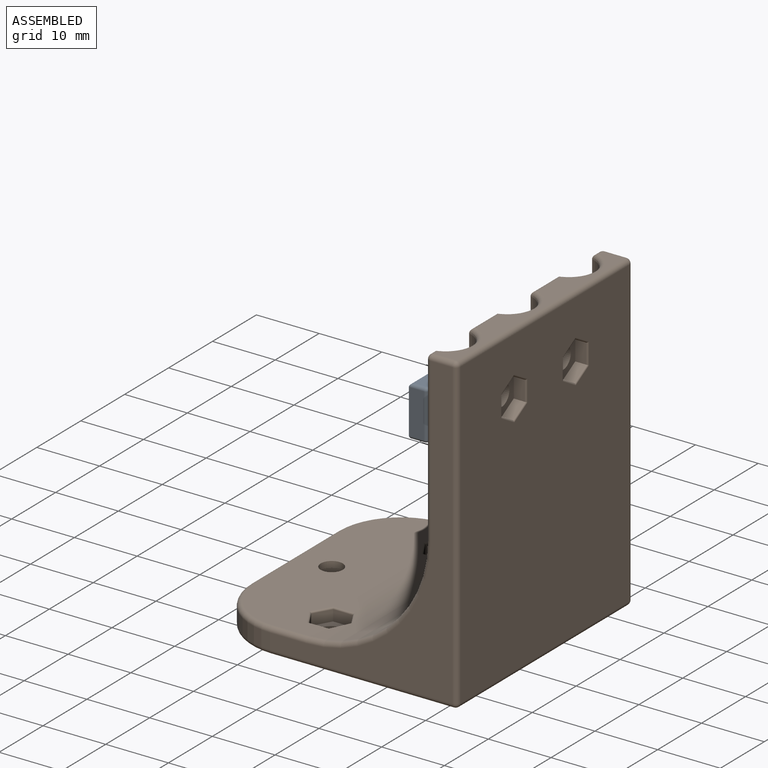
[diagram: assembled view]
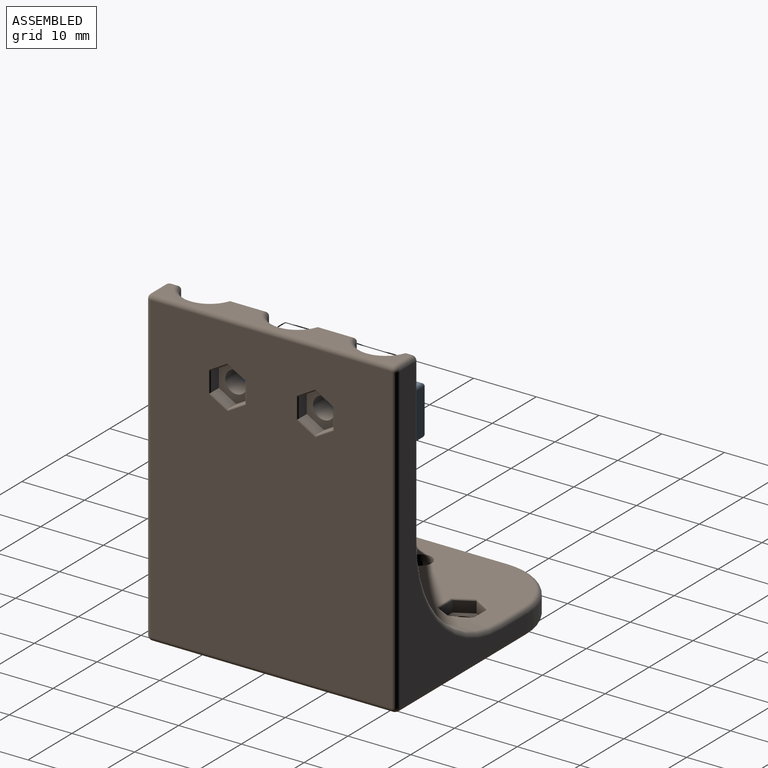
[diagram: assembled view, second angle]
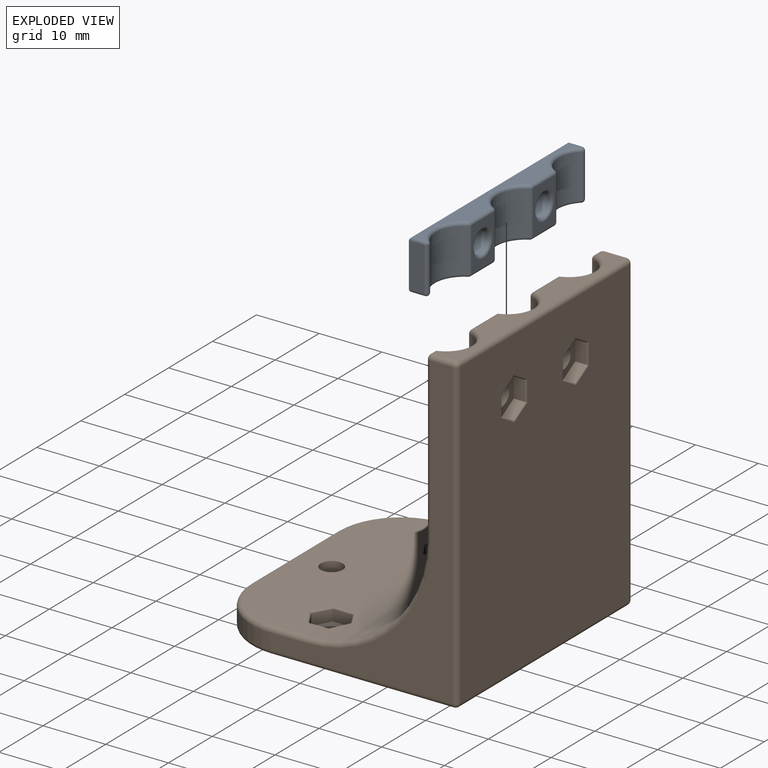
[diagram: exploded view]
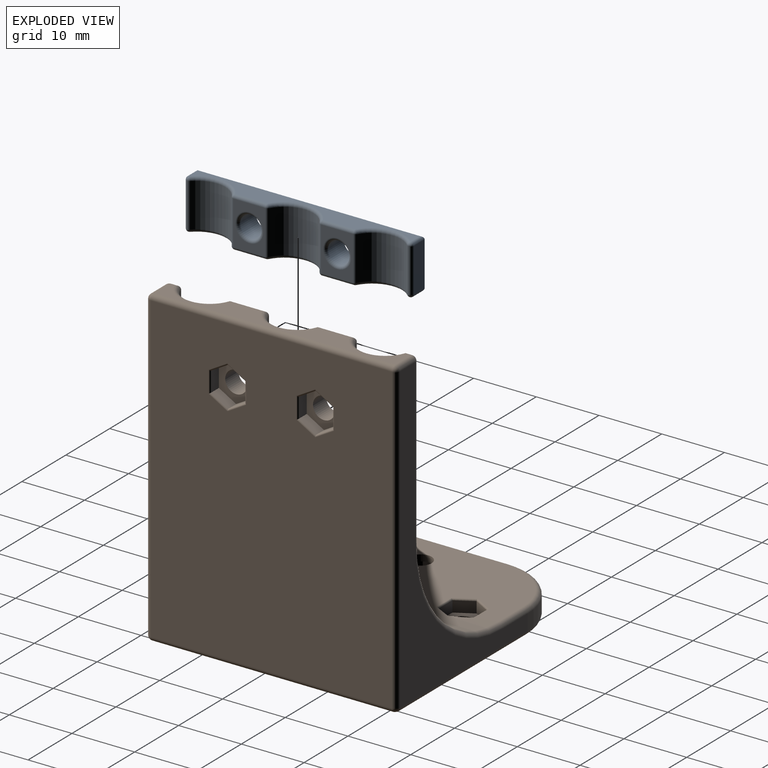
[diagram: exploded view, second angle]
ASSEMBLY  parts=2 mates=2
PART A: 48 faces, bbox 36.4x8x4 mm
  f0: cylinder r=4.6mm len=7.28mm, axis (0,1,0), area 59.4mm2, adj f36,f41,f44,f47
  f1: plane 6.98x5.1mm, normal (0,0,-1), area 19.6mm2, adj f12,f33,f42,f43,f47
  f2: cylinder r=4.6mm len=8.01mm, axis (0,1,0), area 68mm2, adj f24,f32,f33,f34
  f3: plane 6.98x5.1mm, normal (0,0,-1), area 19.6mm2, adj f13,f15,f23,f24,f25
  f4: cylinder r=4.6mm len=7.28mm, axis (0,1,0), area 59.4mm2, adj f14,f15,f16,f17
  f5: plane 6.98x2.41mm, normal (1,0,0), area 16.8mm2, adj f6,f17,f22,f26
  f6: plane 36.29x6.98mm, normal (0,0,1), area 234.2mm2, adj f5,f7,f10,f11,f27,f30
  f7: plane 6.98x2.41mm, normal (-1,0,0), area 16.8mm2, adj f6,f31,f35,f36
  f8: plane 35.27x2.98mm, normal (0,-1,0), area 56.9mm2, adj f14,f22,f23,f27,f31,f32,f41,f42
  f9: plane 35.27x2.98mm, normal (0,1,0), area 56.9mm2, adj f16,f25,f26,f30,f34,f35,f43,f44
  f10: cylinder r=1.75mm len=3.5mm, axis (0,0,1), area 38.4mm2, adj f6,f13
  f11: cylinder r=1.75mm len=3.5mm, axis (0,0,1), area 38.4mm2, adj f6,f12
  f12: torus R=2.26mm, axis (0,0,1), area 9.7mm2, adj f1,f11
  f13: torus R=2.26mm, axis (0,0,1), area 9.7mm2, adj f3,f10
  f14: torus R=5.11mm, axis (0,-1,0), area 7.1mm2, adj f4,f8,f18,f19
  f15: cylinder r=0.51mm len=6.98mm, axis (0,1,0), area 3.8mm2, adj f3,f4,f19,f20
  f16: torus R=5.11mm, axis (0,-1,0), area 7.1mm2, adj f4,f9,f20,f21
  f17: cylinder r=0.51mm len=6.98mm, axis (0,1,0), area 8.4mm2, adj f4,f5,f18,f21
  f18: sphere r=0.51mm, area 0.6mm2, adj f14,f17,f22
  f19: sphere r=0.51mm, area 0.3mm2, adj f14,f15,f23
  f20: sphere r=0.51mm, area 0.3mm2, adj f15,f16,f25
  f21: sphere r=0.51mm, area 0.6mm2, adj f16,f17,f26
  f22: cylinder r=0.51mm len=2.41mm, axis (0,0,-1), area 1.8mm2, adj f5,f8,f18,f27
  f23: cylinder r=0.51mm len=5.1mm, axis (-1,0,0), area 4.1mm2, adj f3,f8,f19,f28
  f24: cylinder r=0.51mm len=6.98mm, axis (0,1,0), area 3.8mm2, adj f2,f3,f28,f29
  f25: cylinder r=0.51mm len=5.1mm, axis (1,0,0), area 4.1mm2, adj f3,f9,f20,f29
  f26: cylinder r=0.51mm len=2.41mm, axis (0,0,1), area 1.8mm2, adj f5,f9,f21,f30
  f27: cylinder r=0.51mm len=36.29mm, axis (1,0,0), area 28.7mm2, adj f6,f8,f22,f31
  f28: sphere r=0.51mm, area 0.3mm2, adj f23,f24,f32
  f29: sphere r=0.51mm, area 0.3mm2, adj f24,f25,f34
  f30: cylinder r=0.51mm len=36.29mm, axis (-1,0,0), area 28.7mm2, adj f6,f9,f26,f35
  f31: cylinder r=0.51mm len=2.41mm, axis (0,0,1), area 1.8mm2, adj f7,f8,f27,f37
  f32: torus R=5.11mm, axis (0,-1,0), area 8.1mm2, adj f2,f8,f28,f38
  f33: cylinder r=0.51mm len=6.98mm, axis (0,1,0), area 3.8mm2, adj f1,f2,f38,f39
  f34: torus R=5.11mm, axis (0,-1,0), area 8.1mm2, adj f2,f9,f29,f39
  f35: cylinder r=0.51mm len=2.41mm, axis (0,0,-1), area 1.8mm2, adj f7,f9,f30,f40
  f36: cylinder r=0.51mm len=6.98mm, axis (0,1,0), area 8.4mm2, adj f0,f7,f37,f40
  f37: sphere r=0.51mm, area 0.6mm2, adj f31,f36,f41
  f38: sphere r=0.51mm, area 0.3mm2, adj f32,f33,f42
  f39: sphere r=0.51mm, area 0.3mm2, adj f33,f34,f43
  f40: sphere r=0.51mm, area 0.6mm2, adj f35,f36,f44
  f41: torus R=5.11mm, axis (0,-1,0), area 7.1mm2, adj f0,f8,f37,f45
  f42: cylinder r=0.51mm len=5.1mm, axis (-1,0,0), area 4.1mm2, adj f1,f8,f38,f45
  f43: cylinder r=0.51mm len=5.1mm, axis (1,0,0), area 4.1mm2, adj f1,f9,f39,f46
  f44: torus R=5.11mm, axis (0,-1,0), area 7.1mm2, adj f0,f9,f40,f46
  f45: sphere r=0.51mm, area 0.3mm2, adj f41,f42,f47
  f46: sphere r=0.51mm, area 0.3mm2, adj f43,f44,f47
  f47: cylinder r=0.51mm len=6.98mm, axis (0,1,0), area 3.8mm2, adj f0,f1,f45,f46
PART B: 130 faces, bbox 40.8x41.7x50 mm
  f0: cylinder r=1.75mm len=3.5mm, axis (0,0,1), area 11mm2, adj f11,f43
  f1: cylinder r=1.75mm len=3.5mm, axis (-1,0,0), area 33mm2, adj f3,f34
  f2: cylinder r=1.75mm len=3.5mm, axis (-1,0,0), area 33mm2, adj f4,f27
  f3: plane 26.19x6.25mm, normal (-1,0,0), area 154.2mm2, adj f1,f10,f15,f16,f80
  f4: plane 26.19x6.25mm, normal (-1,0,0), area 154.2mm2, adj f2,f10,f16,f17,f70
  f5: plane 26.19x1.37mm, normal (-1,0,0), area 35.7mm2, adj f10,f17,f63,f64
  f6: plane 38.48x3.48mm, normal (0,0,1), area 76.1mm2, adj f63,f65,f70,f71,f76,f80,f81,f84
  f7: plane 38.48x38.48mm, normal (0,0,-1), area 1392mm2, adj f35,f36,f60,f61,f62,f68,f73,f74
  f8: plane 48.48x38.48mm, normal (1,0,0), area 1802.6mm2, adj f72,f73,f81,f82,f118,f119,f120,f121
  f9: plane 26.19x1.37mm, normal (-1,0,0), area 35.7mm2, adj f10,f15,f87,f92
  f10: cylinder r=19.05mm len=38.48mm, axis (0,1,0), area 1087.7mm2, adj f3,f4,f5,f9,f11,f15,f16,f17
  f11: plane 38.48x15.19mm, normal (0,0,1), area 494.2mm2, adj f0,f10,f75,f79,f83,f86,f89,f96
  f12: plane 19.68x2.48mm, normal (-1,0,0), area 48.7mm2, adj f58,f59,f62,f83
  f13: plane 48.48x29.08mm, normal (0,-1,0), area 316.1mm2, adj f59,f74,f82,f88,f89,f91,f92
  f14: plane 48.48x29.08mm, normal (0,1,0), area 316.1mm2, adj f58,f61,f64,f69,f71,f72,f75
  f15: cylinder r=4mm len=26.43mm, axis (0,0,1), area 268.3mm2, adj f3,f9,f10,f84,f95
  f16: cylinder r=4mm len=26.43mm, axis (0,0,1), area 268.3mm2, adj f3,f4,f10,f76,f94
  f17: cylinder r=4mm len=26.43mm, axis (0,0,1), area 268.3mm2, adj f4,f5,f10,f65,f93
  f18: cylinder r=2.54mm len=6.47mm, axis (0,1,0), area 16.7mm2, adj f10,f95
  f19: cylinder r=2.54mm len=6.47mm, axis (0,1,0), area 16.7mm2, adj f10,f94
  f20: cylinder r=2.54mm len=6.47mm, axis (0,1,0), area 16.7mm2, adj f10,f93
  f21: plane 3.18x1.75mm, normal (0,-1,0), area 5.5mm2, adj f22,f26,f27,f120
  f22: plane 2.75x1.75mm, normal (0,-0.5,-0.87), area 5.5mm2, adj f21,f23,f27,f118
  f23: plane 2.75x1.75mm, normal (0,0.5,-0.87), area 5.5mm2, adj f22,f24,f27,f119
  f24: plane 3.18x1.75mm, normal (0,1,0), area 5.5mm2, adj f23,f25,f27,f121
  f25: plane 2.75x1.75mm, normal (0,0.5,0.87), area 5.5mm2, adj f24,f26,f27,f123
  f26: plane 2.75x1.75mm, normal (0,-0.5,0.87), area 5.5mm2, adj f21,f25,f27,f122
  f27: plane 6.35x5.5mm, normal (1,0,0), area 16.6mm2, adj f2,f21,f22,f23,f24,f25,f26
  f28: plane 3.18x1.75mm, normal (0,-1,0), area 5.5mm2, adj f29,f33,f34,f126
  f29: plane 2.75x1.75mm, normal (0,-0.5,-0.87), area 5.5mm2, adj f28,f30,f34,f124
  f30: plane 2.75x1.75mm, normal (0,0.5,-0.87), area 5.5mm2, adj f29,f31,f34,f125
  f31: plane 3.18x1.75mm, normal (0,1,0), area 5.5mm2, adj f30,f32,f34,f127
  f32: plane 2.75x1.75mm, normal (0,0.5,0.87), area 5.5mm2, adj f31,f33,f34,f129
  f33: plane 2.75x1.75mm, normal (0,-0.5,0.87), area 5.5mm2, adj f28,f32,f34,f128
  f34: plane 6.35x5.5mm, normal (1,0,0), area 16.6mm2, adj f1,f28,f29,f30,f31,f32,f33
  f35: cylinder r=1.75mm len=3.5mm, axis (0,0,1), area 22mm2, adj f7,f57
  f36: cylinder r=1.75mm len=3.5mm, axis (0,0,1), area 22mm2, adj f7,f50
  f37: plane 3.18x2.75mm, normal (-1,0,0), area 8.7mm2, adj f38,f42,f43,f114
  f38: plane 2.75x2.75mm, normal (-0.5,0.87,0), area 8.7mm2, adj f37,f39,f43,f112
  f39: plane 2.75x2.75mm, normal (0.5,0.87,0), area 8.7mm2, adj f38,f40,f43,f113
  f40: plane 3.18x2.75mm, normal (1,0,0), area 8.7mm2, adj f39,f41,f43,f115
  f41: plane 2.75x2.75mm, normal (0.5,-0.87,0), area 8.7mm2, adj f40,f42,f43,f117
  f42: plane 2.75x2.75mm, normal (-0.5,-0.87,0), area 8.7mm2, adj f37,f41,f43,f116
  f43: plane 6.35x5.5mm, normal (0,0,-1), area 16.6mm2, adj f0,f37,f38,f39,f40,f41,f42
  f44: plane 3.18x1.76mm, normal (0,-1,0), area 5.5mm2, adj f45,f49,f50,f102,f103
  f45: plane 2.75x1.75mm, normal (0.87,-0.5,0), area 5.5mm2, adj f44,f46,f50,f100
  f46: plane 2.75x1.75mm, normal (0.87,0.5,0), area 5.5mm2, adj f45,f47,f50,f98
  f47: plane 3.18x1.76mm, normal (0,1,0), area 5.5mm2, adj f46,f48,f50,f96,f97
  f48: plane 2.75x1.9mm, normal (-0.87,0.5,0), area 5.8mm2, adj f47,f49,f50,f97,f99
  f49: plane 2.75x1.9mm, normal (-0.87,-0.5,0), area 5.8mm2, adj f44,f48,f50,f101,f103
  f50: plane 6.35x5.5mm, normal (0,0,1), area 16.6mm2, adj f36,f44,f45,f46,f47,f48,f49
  f51: plane 2.75x1.75mm, normal (0.87,0.5,0), area 5.5mm2, adj f52,f56,f57,f107
  f52: plane 3.18x1.76mm, normal (0,1,0), area 5.5mm2, adj f51,f53,f57,f109,f111
  f53: plane 2.75x1.9mm, normal (-0.87,0.5,0), area 5.8mm2, adj f52,f54,f57,f110,f111
  f54: plane 2.75x1.9mm, normal (-0.87,-0.5,0), area 5.8mm2, adj f53,f55,f57,f106,f108
  f55: plane 3.18x1.76mm, normal (0,-1,0), area 5.5mm2, adj f54,f56,f57,f104,f106
  f56: plane 2.75x1.75mm, normal (0.87,-0.5,0), area 5.5mm2, adj f51,f55,f57,f105
  f57: plane 6.35x5.5mm, normal (0,0,1), area 16.6mm2, adj f35,f51,f52,f53,f54,f55,f56
  f58: cylinder r=10.16mm len=10.16mm, axis (0,0,-1), area 39.5mm2, adj f12,f14,f60,f79
  f59: cylinder r=10.16mm len=10.16mm, axis (0,0,1), area 39.5mm2, adj f12,f13,f68,f86
  f60: torus R=9.4mm, axis (0,0,-1), area 18.6mm2, adj f7,f58,f61,f62
  f61: cylinder r=0.76mm len=29.08mm, axis (1,0,0), area 34.8mm2, adj f7,f14,f60,f67
  f62: cylinder r=0.76mm len=19.68mm, axis (0,1,0), area 23.6mm2, adj f7,f12,f60,f68
  f63: cylinder r=0.76mm len=1.37mm, axis (0,1,0), area 1.3mm2, adj f5,f6,f65,f66
  f64: cylinder r=0.76mm len=26.19mm, axis (0,0,-1), area 31.3mm2, adj f5,f14,f66,f69
  f65: torus R=4.76mm, axis (0,0,-1), area 12.8mm2, adj f6,f17,f63,f70
  f66: sphere r=0.76mm, area 0.9mm2, adj f63,f64,f71
  f67: sphere r=0.76mm, area 0.6mm2, adj f61,f72,f73
  f68: torus R=9.4mm, axis (0,0,-1), area 18.6mm2, adj f7,f59,f62,f74
  f69: torus R=19.81mm, axis (0,-1,0), area 36.3mm2, adj f10,f14,f64,f75
  f70: cylinder r=0.76mm len=6.25mm, axis (0,1,0), area 6.8mm2, adj f4,f6,f65,f76
  f71: cylinder r=0.76mm len=3.48mm, axis (-1,0,0), area 4.2mm2, adj f6,f14,f66,f77
  f72: cylinder r=0.76mm len=48.48mm, axis (0,0,1), area 58mm2, adj f8,f14,f67,f77
  f73: cylinder r=0.76mm len=38.48mm, axis (0,-1,0), area 46.1mm2, adj f7,f8,f67,f78
  f74: cylinder r=0.76mm len=29.08mm, axis (-1,0,0), area 34.8mm2, adj f7,f13,f68,f78
  f75: cylinder r=0.76mm len=5.79mm, axis (-1,0,0), area 6.9mm2, adj f11,f14,f69,f79
  f76: torus R=4.76mm, axis (0,0,-1), area 12.8mm2, adj f6,f16,f70,f80
  f77: sphere r=0.76mm, area 0.9mm2, adj f71,f72,f81
  f78: sphere r=0.76mm, area 1.2mm2, adj f73,f74,f82
  f79: torus R=9.4mm, axis (0,0,1), area 18.6mm2, adj f11,f58,f75,f83
  f80: cylinder r=0.76mm len=6.25mm, axis (0,1,0), area 6.8mm2, adj f3,f6,f76,f84
  f81: cylinder r=0.76mm len=38.48mm, axis (0,1,0), area 46.1mm2, adj f6,f8,f77,f85
  f82: cylinder r=0.76mm len=48.48mm, axis (0,0,-1), area 58mm2, adj f8,f13,f78,f85
  f83: cylinder r=0.76mm len=19.68mm, axis (0,1,0), area 23.6mm2, adj f11,f12,f79,f86
  f84: torus R=4.76mm, axis (0,0,-1), area 12.8mm2, adj f6,f15,f80,f87
  f85: sphere r=0.76mm, area 0.9mm2, adj f81,f82,f88
  f86: torus R=9.4mm, axis (0,0,1), area 18.6mm2, adj f11,f59,f83,f89
  f87: cylinder r=0.76mm len=1.37mm, axis (0,1,0), area 1.3mm2, adj f6,f9,f84,f90
  f88: cylinder r=0.76mm len=3.48mm, axis (1,0,0), area 4.2mm2, adj f6,f13,f85,f90
  f89: cylinder r=0.76mm len=5.79mm, axis (1,0,0), area 6.9mm2, adj f11,f13,f86,f91
  f90: sphere r=0.76mm, area 0.9mm2, adj f87,f88,f92
  f91: torus R=19.81mm, axis (0,-1,0), area 36.3mm2, adj f10,f13,f89,f92
  f92: cylinder r=0.76mm len=26.19mm, axis (0,0,1), area 31.3mm2, adj f9,f13,f90,f91
  f93: bspline ~8x3.86mm, area 12.1mm2, adj f10,f17,f20
  f94: bspline ~8x3.86mm, area 12.1mm2, adj f10,f16,f19
  f95: bspline ~8x3.87mm, area 12.1mm2, adj f10,f15,f18
  f96: cylinder r=0.25mm len=2.68mm, axis (-1,0,0), area 1mm2, adj f11,f47,f97,f98
  f97: torus R=19.3mm, axis (0,-1,0), area 0.3mm2, adj f10,f47,f48,f96,f99
  f98: cylinder r=0.25mm len=3.13mm, axis (-0.5,0.87,0), area 1.3mm2, adj f11,f46,f96,f100
  f99: bspline ~3.13x1.92mm, area 1.3mm2, adj f10,f48,f97,f101
  f100: cylinder r=0.25mm len=3.13mm, axis (0.5,0.87,0), area 1.3mm2, adj f11,f45,f98,f102
  f101: bspline ~3.13x1.92mm, area 1.3mm2, adj f10,f49,f99,f103
  f102: cylinder r=0.25mm len=2.68mm, axis (1,0,0), area 1mm2, adj f11,f44,f100,f103
  f103: torus R=19.3mm, axis (0,1,0), area 0.3mm2, adj f10,f44,f49,f101,f102
  f104: cylinder r=0.25mm len=2.68mm, axis (1,0,0), area 1mm2, adj f11,f55,f105,f106
  f105: cylinder r=0.25mm len=3.13mm, axis (0.5,0.87,0), area 1.3mm2, adj f11,f56,f104,f107
  f106: torus R=19.3mm, axis (0,1,0), area 0.3mm2, adj f10,f54,f55,f104,f108
  f107: cylinder r=0.25mm len=3.13mm, axis (-0.5,0.87,0), area 1.3mm2, adj f11,f51,f105,f109
  f108: bspline ~3.13x1.92mm, area 1.3mm2, adj f10,f54,f106,f110
  f109: cylinder r=0.25mm len=2.68mm, axis (-1,0,0), area 1mm2, adj f11,f52,f107,f111
  f110: bspline ~3.13x1.92mm, area 1.3mm2, adj f10,f53,f108,f111
  f111: torus R=19.3mm, axis (0,-1,0), area 0.3mm2, adj f10,f52,f53,f109,f110
  f112: cylinder r=0.25mm len=3.13mm, axis (0.87,0.5,0), area 1.3mm2, adj f7,f38,f113,f114
  f113: cylinder r=0.25mm len=3.13mm, axis (0.87,-0.5,0), area 1.3mm2, adj f7,f39,f112,f115
  f114: cylinder r=0.25mm len=3.47mm, axis (0,1,0), area 1.3mm2, adj f7,f37,f112,f116
  f115: cylinder r=0.25mm len=3.47mm, axis (0,-1,0), area 1.3mm2, adj f7,f40,f113,f117
  f116: cylinder r=0.25mm len=3.13mm, axis (-0.87,0.5,0), area 1.3mm2, adj f7,f42,f114,f117
  f117: cylinder r=0.25mm len=3.13mm, axis (-0.87,-0.5,0), area 1.3mm2, adj f7,f41,f115,f116
  f118: cylinder r=0.25mm len=3.13mm, axis (0,-0.87,0.5), area 1.3mm2, adj f8,f22,f119,f120
  f119: cylinder r=0.25mm len=3.13mm, axis (0,-0.87,-0.5), area 1.3mm2, adj f8,f23,f118,f121
  f120: cylinder r=0.25mm len=3.47mm, axis (0,0,1), area 1.3mm2, adj f8,f21,f118,f122
  f121: cylinder r=0.25mm len=3.47mm, axis (0,0,-1), area 1.3mm2, adj f8,f24,f119,f123
  f122: cylinder r=0.25mm len=3.13mm, axis (0,0.87,0.5), area 1.3mm2, adj f8,f26,f120,f123
  f123: cylinder r=0.25mm len=3.13mm, axis (0,0.87,-0.5), area 1.3mm2, adj f8,f25,f121,f122
  f124: cylinder r=0.25mm len=3.13mm, axis (0,-0.87,0.5), area 1.3mm2, adj f8,f29,f125,f126
  f125: cylinder r=0.25mm len=3.13mm, axis (0,-0.87,-0.5), area 1.3mm2, adj f8,f30,f124,f127
  f126: cylinder r=0.25mm len=3.47mm, axis (0,0,1), area 1.3mm2, adj f8,f28,f124,f128
  f127: cylinder r=0.25mm len=3.47mm, axis (0,0,-1), area 1.3mm2, adj f8,f31,f125,f129
  f128: cylinder r=0.25mm len=3.13mm, axis (0,0.87,0.5), area 1.3mm2, adj f8,f33,f126,f129
  f129: cylinder r=0.25mm len=3.13mm, axis (0,0.87,-0.5), area 1.3mm2, adj f8,f32,f127,f128
PLACE A rot(axis=(0.58,-0.58,-0.58),120deg) t=(-11.99,-7.11,38.53)mm
PLACE B t=(-6.99,12.89,-5.47)mm
MATE parallel A.f10 <-> B.f1  axis (1,0,0) through (-11.99,-14.11,34.53)mm
MATE revolute A.f11 <-> B.f2  axis (1,0,0) through (-11.99,-0.11,34.53)mm
